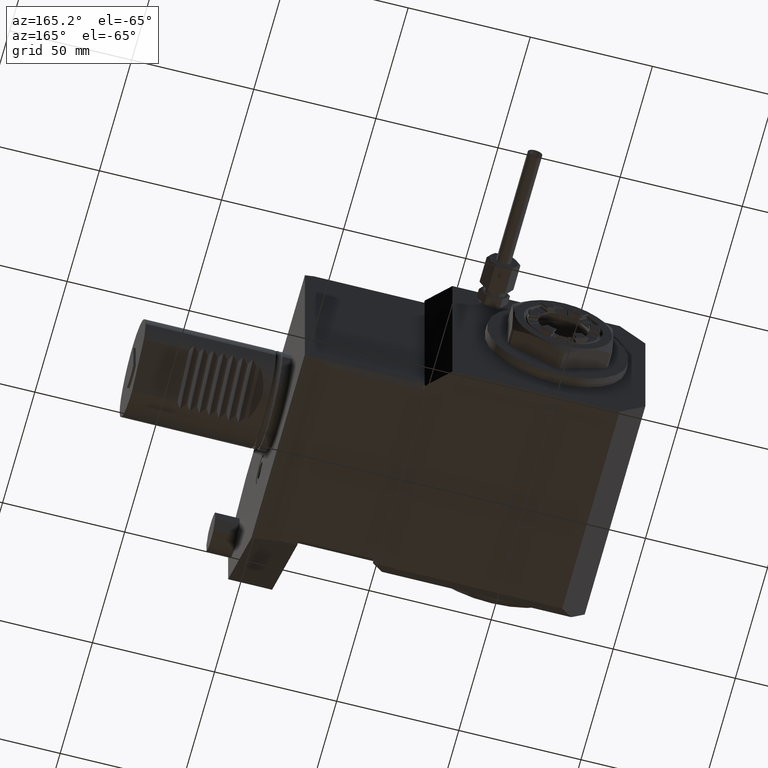
[diagram: clean part render]
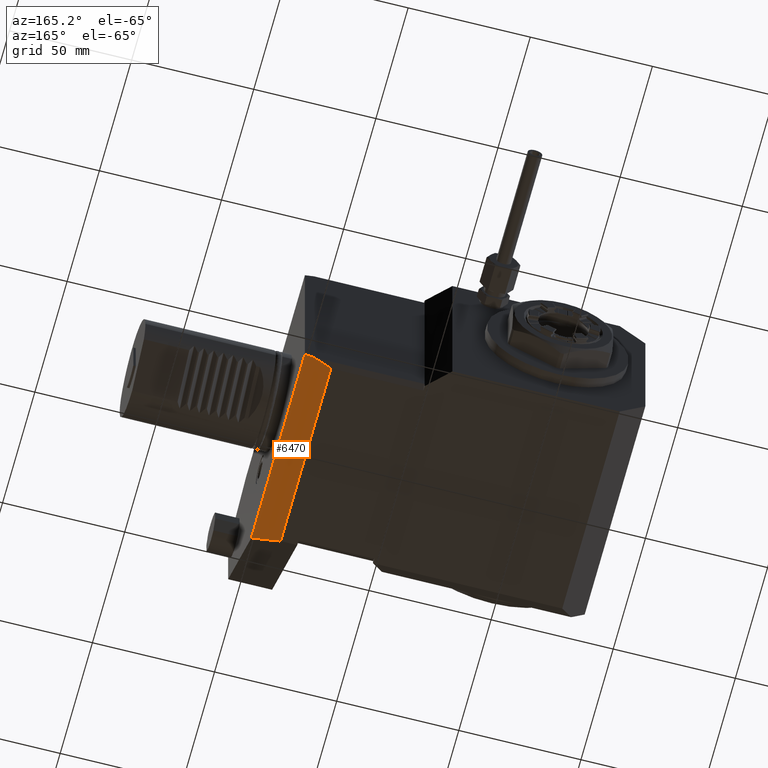
[diagram: same view with one face highlighted and labeled with its STEP entity id]
A machine part, auxiliary view. The second image highlights one B-rep face of the part: STEP entity #6470.
In plain terms, the highlighted planar face has unit normal (-0.2588, 0, 0.9659).
Its self-contained STEP definition (entity closure, byte-faithful):
#325=LINE('',#9726,#881);
#326=LINE('',#9729,#882);
#327=LINE('',#9731,#883);
#328=LINE('',#9733,#884);
#329=LINE('',#9735,#885);
#881=VECTOR('',#7709,1000.);
#882=VECTOR('',#7710,1000.);
#883=VECTOR('',#7711,1000.);
#884=VECTOR('',#7712,1000.);
#885=VECTOR('',#7713,1000.);
#1397=PLANE('',#6914);
#1842=ORIENTED_EDGE('',*,*,#3661,.T.);
#1843=ORIENTED_EDGE('',*,*,#3662,.F.);
#1844=ORIENTED_EDGE('',*,*,#3663,.F.);
#1845=ORIENTED_EDGE('',*,*,#3664,.F.);
#1846=ORIENTED_EDGE('',*,*,#3665,.T.);
#3661=EDGE_CURVE('',#4589,#4590,#325,.T.);
#3662=EDGE_CURVE('',#4591,#4590,#326,.T.);
#3663=EDGE_CURVE('',#4592,#4591,#327,.T.);
#3664=EDGE_CURVE('',#4593,#4592,#328,.T.);
#3665=EDGE_CURVE('',#4593,#4589,#329,.F.);
#4589=VERTEX_POINT('',#9727);
#4590=VERTEX_POINT('',#9728);
#4591=VERTEX_POINT('',#9730);
#4592=VERTEX_POINT('',#9732);
#4593=VERTEX_POINT('',#9734);
#5423=EDGE_LOOP('',(#1842,#1843,#1844,#1845,#1846));
#5889=FACE_BOUND('',#5423,.T.);
#6470=ADVANCED_FACE('',(#5889),#1397,.F.);
#6914=AXIS2_PLACEMENT_3D('',#9725,#7707,#7708);
#7707=DIRECTION('',(-0.258819045102521,0.,0.965925826289068));
#7708=DIRECTION('',(0.965925826289068,0.,0.258819045102521));
#7709=DIRECTION('',(0.965925826289068,0.,0.258819045102521));
#7710=DIRECTION('',(0.,1.,0.));
#7711=DIRECTION('',(0.935113126531029,-0.250562807085732,0.250562807085732));
#7712=DIRECTION('',(0.,-1.,0.));
#7713=DIRECTION('',(-0.935113126531029,-0.250562807085731,-0.250562807085732));
#9725=CARTESIAN_POINT('',(-11.1961524227066,-140.11662888251,-40.));
#9726=CARTESIAN_POINT('',(-11.1961524227066,40.,-40.));
#9727=CARTESIAN_POINT('',(-3.73205080756882,40.,-38.));
#9728=CARTESIAN_POINT('',(3.46944695195361E-15,40.,-37.));
#9729=CARTESIAN_POINT('',(3.46944695195361E-15,-140.11662888251,-37.));
#9730=CARTESIAN_POINT('',(4.60220782923931E-15,-43.,-37.));
#9731=CARTESIAN_POINT('',(-44.2532188306792,-31.1423857518418,-48.8576142481583));
#9732=CARTESIAN_POINT('',(-11.1961524227066,-40.,-40.));
#9733=CARTESIAN_POINT('',(-11.1961524227066,40.,-40.));
#9734=CARTESIAN_POINT('',(-11.1961524227066,38.,-40.));
#9735=CARTESIAN_POINT('',(-44.2532188306792,29.1423857518418,-48.8576142481583));